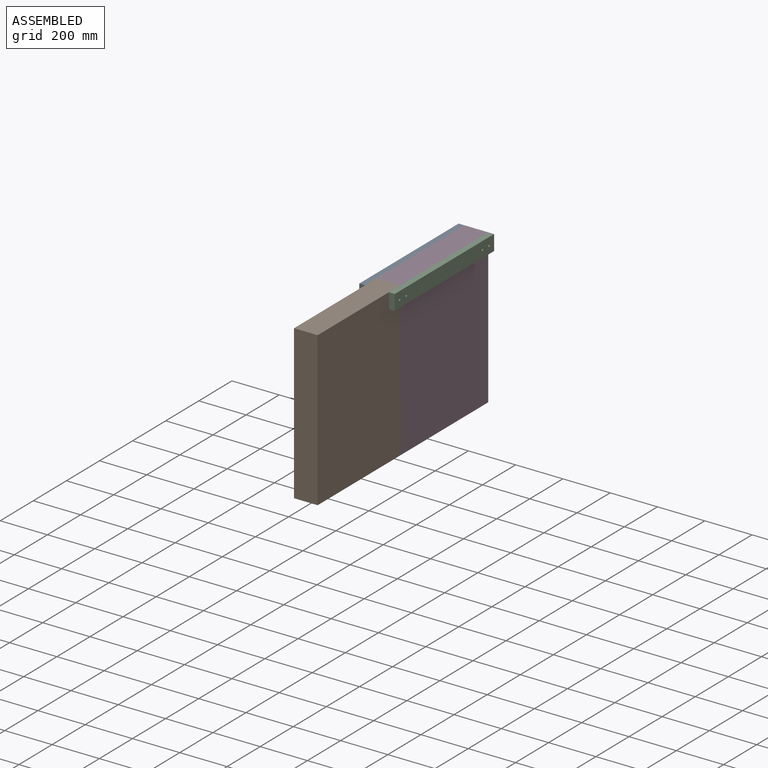
[diagram: assembled view]
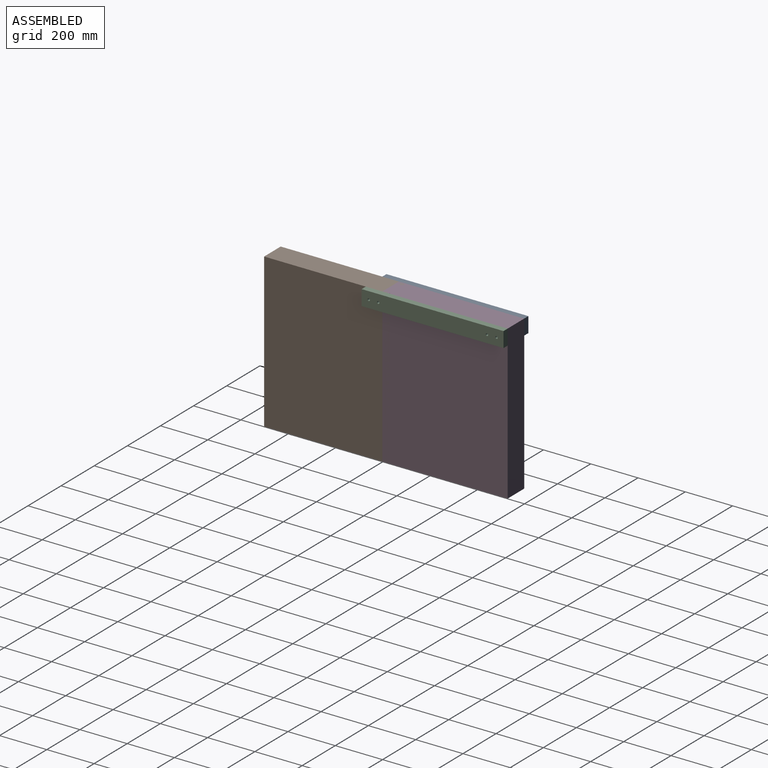
[diagram: assembled view, second angle]
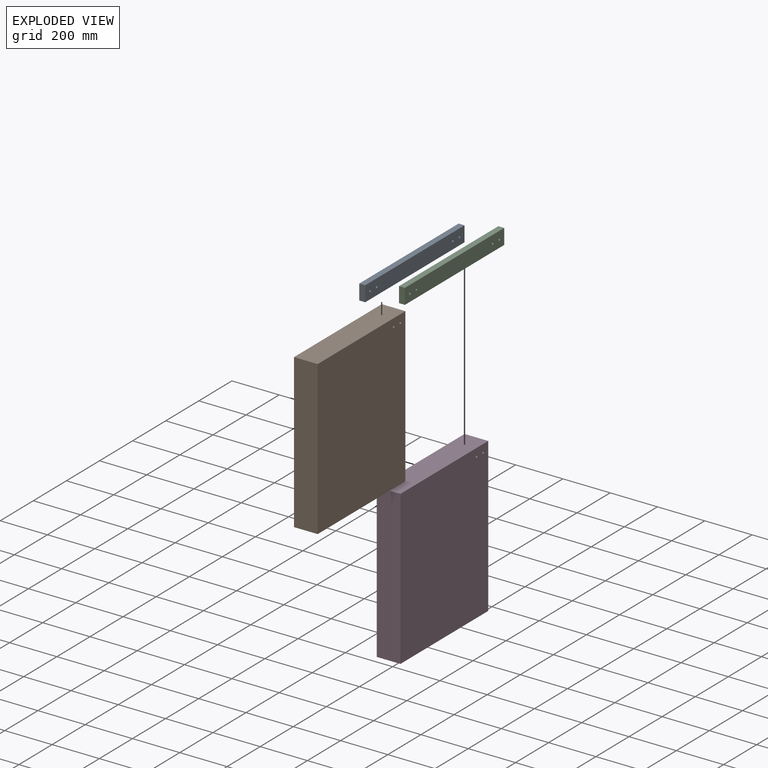
[diagram: exploded view]
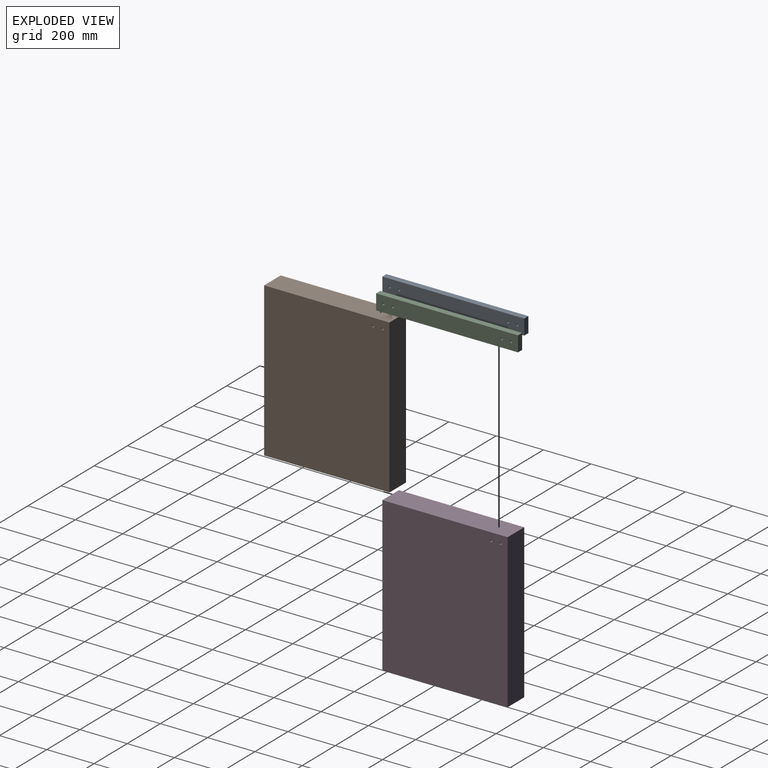
[diagram: exploded view, second angle]
ASSEMBLY  parts=4 mates=7
PART A: 10 faces, bbox 25x600x65 mm
  f0: plane 65x25mm, normal (0,-1,0), area 1625mm2, adj f1,f3,f8,f9
  f1: plane 600x25mm, normal (0,0,-1), area 15000mm2, adj f0,f2,f8,f9
  f2: plane 65x25mm, normal (0,1,0), area 1625mm2, adj f1,f3,f8,f9
  f3: plane 600x25mm, normal (0,0,1), area 15000mm2, adj f0,f2,f8,f9
  f4: cylinder r=5mm len=25mm, axis (-1,0,0), area 785.4mm2, adj f8,f9
  f5: cylinder r=5mm len=25mm, axis (-1,0,0), area 785.4mm2, adj f8,f9
  f6: cylinder r=5mm len=25mm, axis (-1,0,0), area 785.4mm2, adj f8,f9
  f7: cylinder r=5mm len=25mm, axis (-1,0,0), area 785.4mm2, adj f8,f9
  f8: plane 600x65mm, normal (1,0,0), area 38685.8mm2, adj f0,f1,f2,f3,f4,f5,f6,f7
  f9: plane 600x65mm, normal (-1,0,0), area 38685.8mm2, adj f0,f1,f2,f3,f4,f5,f6,f7
PART B: 8 faces, bbox 100x530x650 mm
  f0: plane 650x100mm, normal (0,1,0), area 65000mm2, adj f1,f2,f3,f4
  f1: plane 650x530mm, normal (-1,0,0), area 344342.9mm2, adj f0,f3,f4,f5,f6,f7
  f2: plane 650x530mm, normal (1,0,0), area 344342.9mm2, adj f0,f3,f4,f5,f6,f7
  f3: plane 530x100mm, normal (0,0,1), area 53000mm2, adj f0,f1,f2,f7
  f4: plane 530x100mm, normal (0,0,-1), area 53000mm2, adj f0,f1,f2,f7
  f5: cylinder r=5mm len=100mm, axis (1,0,0), area 3141.6mm2, adj f1,f2
  f6: cylinder r=5mm len=100mm, axis (1,0,0), area 3141.6mm2, adj f1,f2
  f7: plane 650x100mm, normal (0,-1,0), area 65000mm2, adj f1,f2,f3,f4
PART C: same geometry as A
PART D: same geometry as B
PLACE A t=(-492.79,431.73,-86.45)mm
PLACE B t=(-367.79,431.73,-86.45)mm fixed
PLACE C t=(-367.79,431.73,-86.45)mm
PLACE D t=(-367.79,931.73,-86.45)mm
MATE planar C.f9 <-> B.f2  axis (-1,0,0) through (-367.79,631.73,531.05)mm
MATE planar D.f0 <-> C.f2  axis (0,1,0) through (-417.79,931.73,238.55)mm
MATE planar D.f3 <-> A.f3  axis (0,0,1) through (-417.79,666.73,563.55)mm
MATE planar D.f1 <-> A.f8  axis (-1,0,0) through (-467.79,666.64,238.41)mm
MATE planar A.f3 <-> B.f3  axis (0,0,1) through (-480.29,631.73,563.55)mm
MATE planar B.f3 <-> C.f3  axis (0,0,1) through (-417.79,166.73,563.55)mm
MATE planar B.f1 <-> A.f8  axis (-1,0,0) through (-467.79,166.64,238.41)mm
